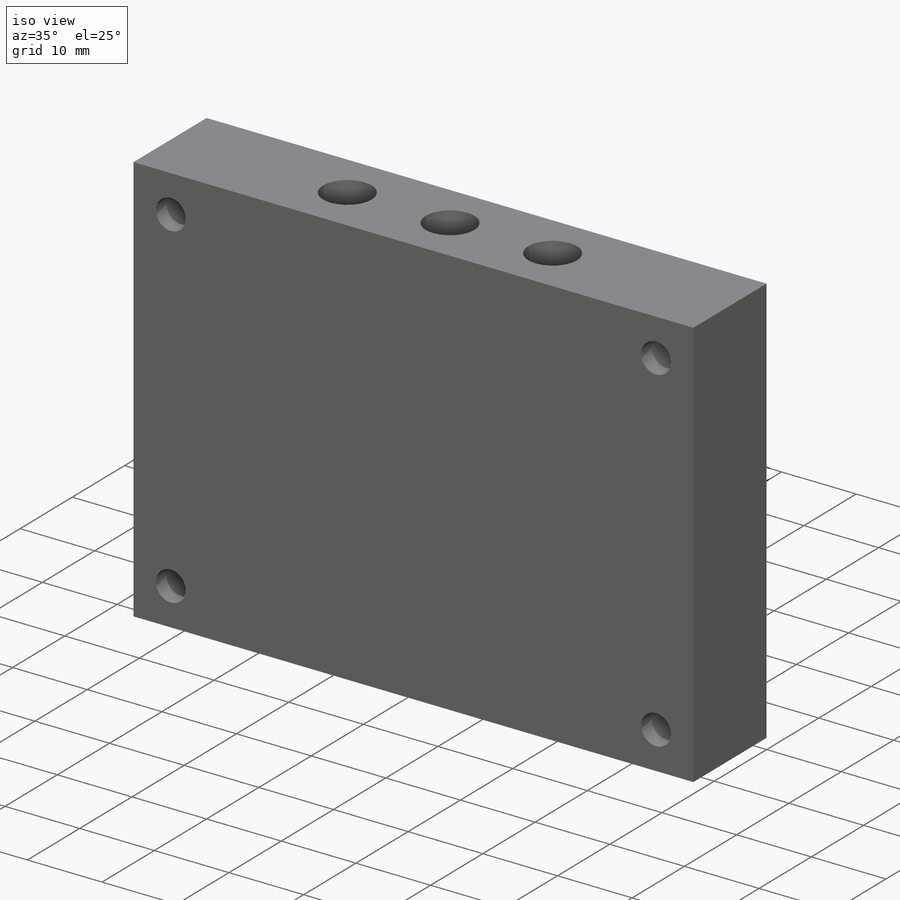
[diagram: iso view]
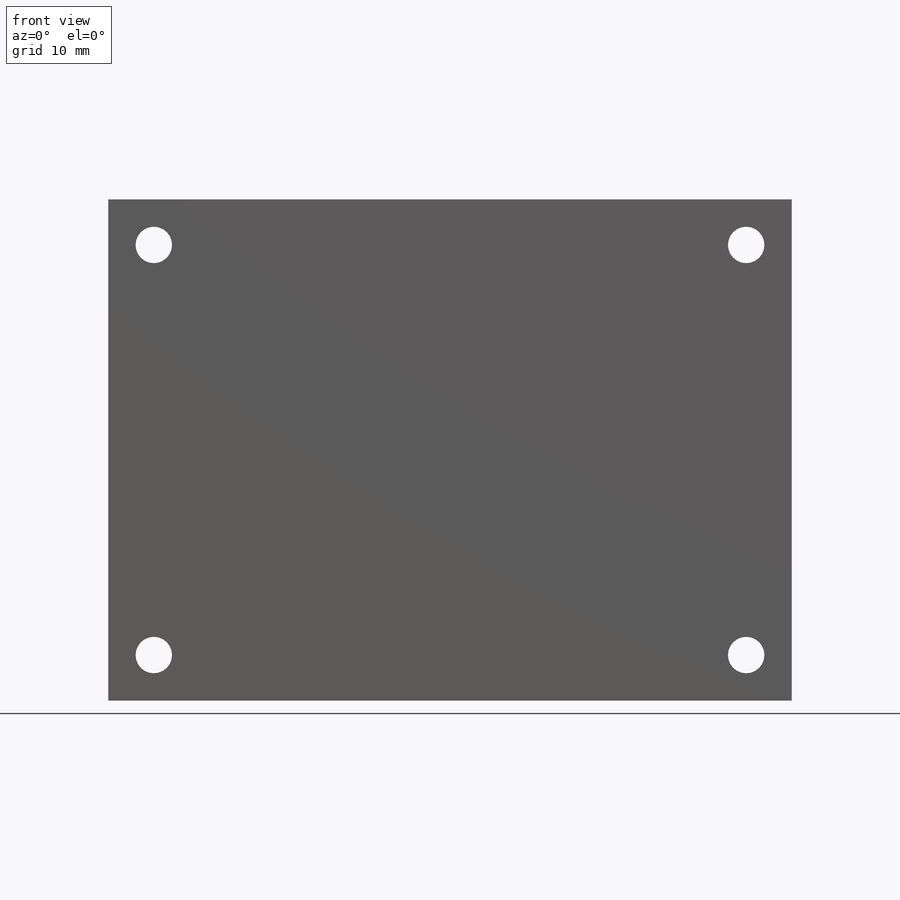
[diagram: front view]
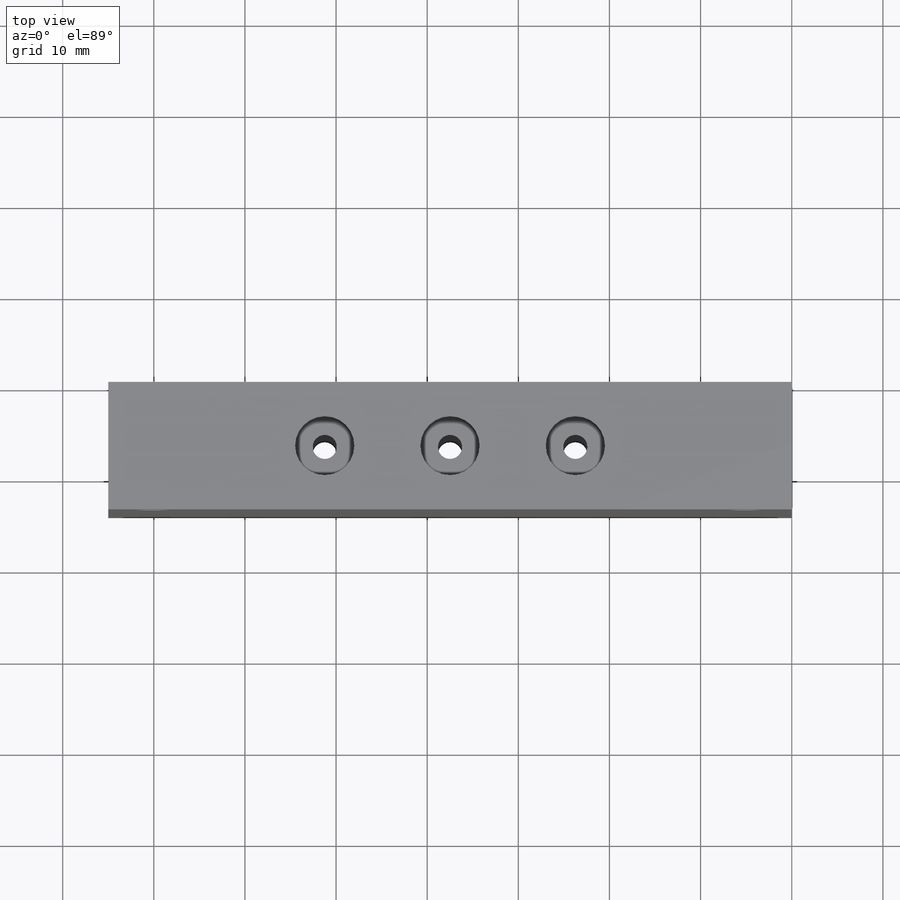
[diagram: top view]
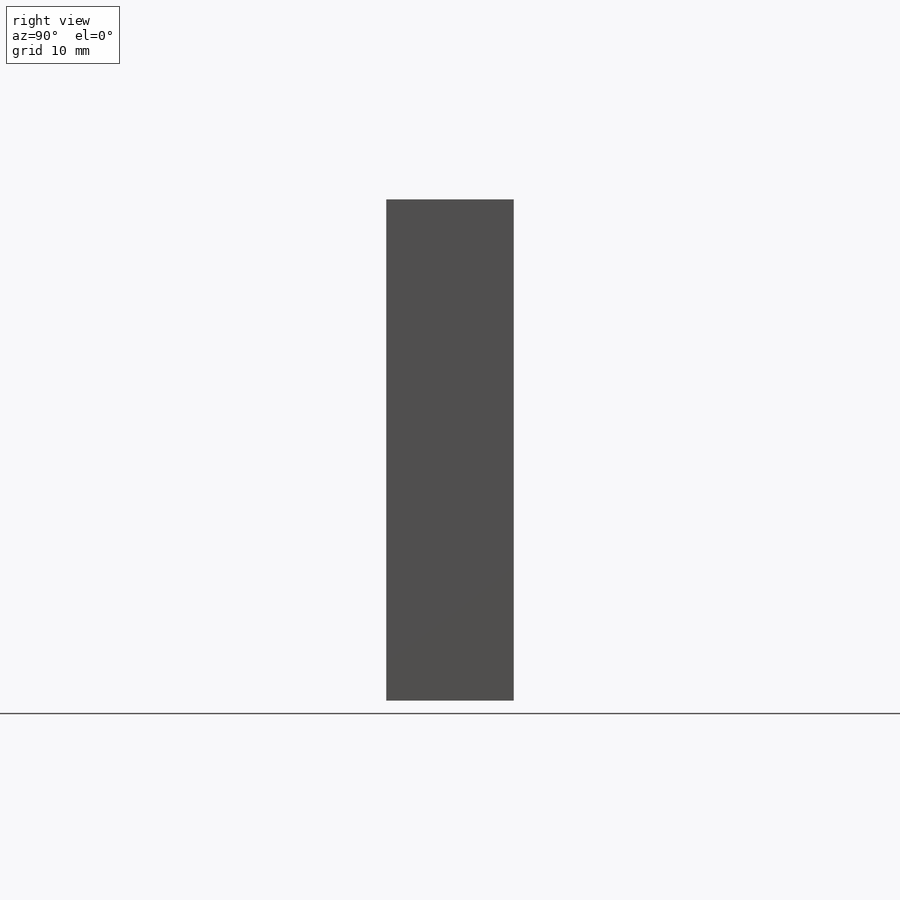
[diagram: right view]
SOLIDWORKS PART (.sldprt)
format: sldprt  version: not decoded by parser v0  size: 309,760 bytes
history: native  units: mm
features: sketch x7, cut_extrude x5, extrude x2, material x1 (+12 scaffold rows collapsed)
feature tree (27):
  scaffold x12  (default folders/planes/origin — collapsed)
  material  "Material <not specified>"
  sketch  "Sketch2"  dims[c1.D1=~57.413468mm c1.D2=~108.796637mm c2.D1=55.0mm c2.D2=35.0mm c2.D3=~32.325434mm c2.D4=~52.439038mm c3.D3=10.0mm c3.D4=10.0mm c3.D5=3.0mm c3.D1=55.0mm c3.D2=35.0mm c4.D5=10.0mm c4.D6=10.0mm]
  extrude  "Boss-Extrude1"  Depth=12mm
  sketch  "Sketch3"  dims[D1=41.0mm D2=61.0mm]
  extrude  "Boss-Extrude2"  Depth=2mm
  sketch  "Sketch5"  dims[c1.D1=~6.830985mm c1.D2=2.64mm c1.D3=2.64mm c1.D5=2.64mm c2.D1=10.0mm c2.D2=~53.571721mm c2.D3=13.75mm c2.D5=13.75mm c2.D4=3.0]
  cut_extrude  "Cut-Extrude1"  [1 undecoded]
  sketch  "Sketch6"  dims[D1=6.5mm D3=13.75mm D2=3.0]
  cut_extrude  "Cut-Extrude2"  Depth=8mm
  sketch  "Sketch7"  dims[D1=~2.413103mm D4=31.75mm D5=31.75mm D2=2.0 D3=2.0]
  cut_extrude  "Cut-Extrude3"  [1 undecoded]
  sketch  "Sketch8"  dims[c1.D1=6.5mm c1.D5=6.5mm c1.D6=6.5mm c1.D2=6.5mm c2.D1=~5.740041mm c2.D2=62.0mm c2.D5=42.0mm c2.D6=62.0mm c2.D3=2.0 c2.D4=2.0]
  cut_extrude  "Cut-Extrude4"  Depth=12mm
  sketch  "Sketch9"  dims[c1.D1=4.0mm c1.D2=45.0mm c2.D2=2.0 c2.D3=2.0]
  cut_extrude  "Cut-Extrude5"  [1 undecoded]
decode coverage: 11 of 14 modeling features carry decoded parameters
note: ~ marks probable driven/reference dimensions
note: 3 parameter values undecoded
summary: no parameter record found for 3 features
note: suppression state not decoded; provenance and decode notes live in map.json
